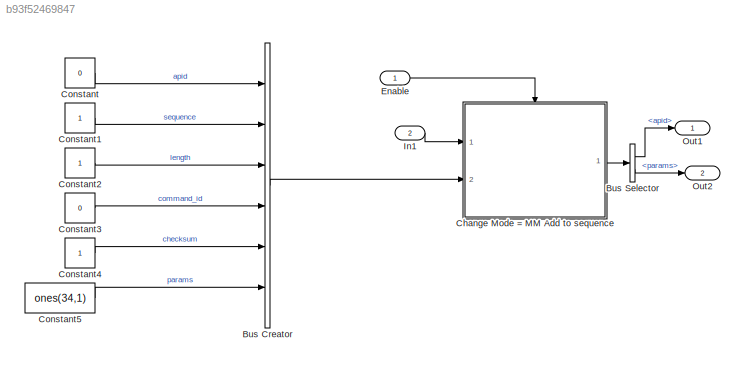
MODEL slx_b93f52469847
KIND model
CONFIG AbsTol = auto
CONFIG EnableMultiTasking = on
CONFIG FixedStep = 0.200000
CONFIG MaxStep = auto
CONFIG MinStep = auto
CONFIG PreLoadFcn = cellInfo = {\n    { ...\n         'cmp_cmd_msg' , ...\n         '', ...\n         sprintf(''), {  ...\n               {  'apid', 1, 'uint16', -1, 'real', 'Sample' }; ... \n               {  'sequence', 1, 'uint16', -1, 'real', 'Sample' }; ... \n               {  'length', 1, 'uint16', -1, 'real', 'Sample' }; ... \n               {  'command_id', 1, 'uint8', -1, 'real', 'Sample' }; ... \n               {  '...<+179ch>
CONFIG RelTol = 1e-3
CONFIG SampleTimeConstraint = Unconstrained
CONFIG Solver = FixedStepDiscrete
CONFIG SolverName = FixedStepDiscrete
CONFIG StartTime = 0.0
CONFIG StopTime = 10.0
BLOCK [BusCreator] Bus Creator
  DisplayOption = bar
  InheritFromInputs = off
  Inputs = 6
  NonVirtualBus = on
  OutDataTypeStr = Bus: cmp_cmd_msg
  Ports = [6, 1]
BLOCK [BusSelector] Bus Selector
  OutputAsBus = off
  OutputSignals = apid,params
  Ports = [1, 2]
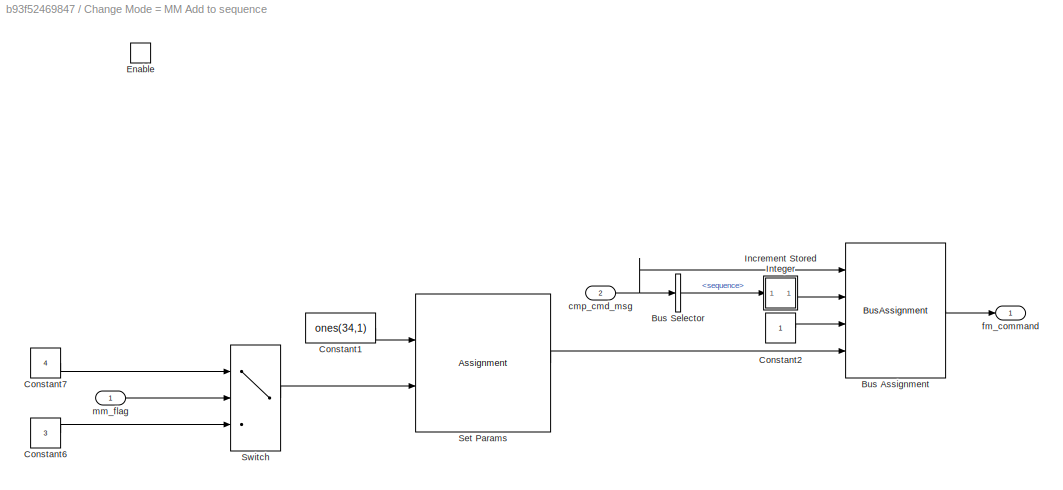
BLOCK [SubSystem] Change Mode = MM Add to sequence
  MinAlgLoopOccurrences = on
  Ports = [2, 1, 1]
  RequestExecContextInheritance = off
  TreatAsAtomicUnit = on
  Variant = off
BLOCK [BusAssignment] Change Mode = MM Add to sequence/Bus Assignment
  AssignedSignals = sequence,command_id,params
  Ports = [4, 1]
BLOCK [BusSelector] Change Mode = MM Add to sequence/Bus Selector
  OutputAsBus = off
  OutputSignals = sequence
  Ports = [1, 1]
BLOCK [Constant] Change Mode = MM Add to sequence/Constant1
  OutDataTypeStr = uint8
  Value = ones(34,1)
BLOCK [Constant] Change Mode = MM Add to sequence/Constant2
  OutDataTypeStr = uint8
BLOCK [Constant] Change Mode = MM Add to sequence/Constant6
  OutDataTypeStr = uint8
  Value = 3
BLOCK [Constant] Change Mode = MM Add to sequence/Constant7
  OutDataTypeStr = uint8
  Value = 4
BLOCK [EnablePort] Change Mode = MM Add to sequence/Enable
  Ports = []
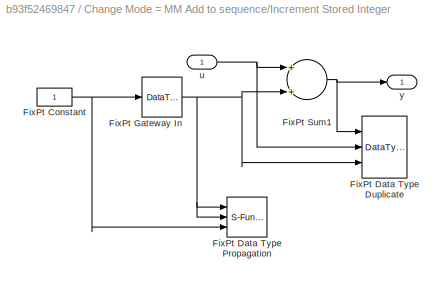
BLOCK [SubSystem] Change Mode = MM Add to sequence/Increment Stored Integer
  AncestorBlock = simulink/Additional Math\n& Discrete/Additional Math:\nIncrement - Decrement/Increment\nStored Integer
  MinAlgLoopOccurrences = on
  Ports = [1, 1]
  RequestExecContextInheritance = off
  TreatAsAtomicUnit = on
  Variant = off
BLOCK [Constant] Change Mode = MM Add to sequence/Increment Stored Integer/FixPt Constant
  DisableCoverage = on
  OutDataTypeStr = Inherit: Inherit via back propagation
BLOCK [DataTypeDuplicate] Change Mode = MM Add to sequence/Increment Stored Integer/FixPt Data Type Duplicate
  DisableCoverage = on
  NumInputPorts = 3
  Ports = [3]
BLOCK [S-Function] Change Mode = MM Add to sequence/Increment Stored Integer/FixPt Data Type Propagation
  AncestorBlock = simulink/Signal\nAttributes/Data Type\nPropagation
  EnableBusSupport = off
  FunctionName = sfix_dtprop
  Parameters = 14,PropDataTypeMode,(getdatatypespecs(PropDataType,PropScaling,DblOver,0, 0, PropDataTypeMode, PropScalingMode)),IfRefDouble,IfRefSingle,IsSigned,NumBitsBase,NumBitsMult,NumBitsAdd,(sort(reshape(round(NumBitsAllowFinal), prod(size(NumBitsAllowFinal)),1))),PropScalingMode,ValuesUsedBestPrec,SlopeBase,SlopeMult,SlopeAdd,BiasBase,BiasMult,BiasAdd,DblOver
  Ports = [3]
  SFcnIsStateOwnerBlock = off
  SFunctionDeploymentMode = off
BLOCK [DataTypeConversion] Change Mode = MM Add to sequence/Increment Stored Integer/FixPt Gateway In
  ConvertRealWorld = Stored Integer (SI)
  DisableCoverage = on
  RndMeth = Floor
  SaturateOnIntegerOverflow = off
BLOCK [Sum] Change Mode = MM Add to sequence/Increment Stored Integer/FixPt Sum1
  LockScale = on
  OutDataTypeStr = Inherit: Inherit via back propagation
  Ports = [2, 1]
  SaturateOnIntegerOverflow = off
BLOCK [Inport] Change Mode = MM Add to sequence/Increment Stored Integer/u
  IconDisplay = Port number
  OutDataTypeStr = uint16
BLOCK [Outport] Change Mode = MM Add to sequence/Increment Stored Integer/y
  IconDisplay = Port number
BLOCK [Assignment] Change Mode = MM Add to sequence/Set Params
  DiagnosticForDimensions = Warning
  IndexOptions = Index vector (dialog)
  Indices = 1
  OutputSizes = 1
  Ports = [2, 1]
BLOCK [Switch] Change Mode = MM Add to sequence/Switch
  Criteria = u2 ~= 0
  InputSameDT = off
  SaturateOnIntegerOverflow = off
BLOCK [Inport] Change Mode = MM Add to sequence/cmp_cmd_msg
  IconDisplay = Port number
  OutDataTypeStr = Bus: cmp_cmd_msg
  Port = 2
BLOCK [Outport] Change Mode = MM Add to sequence/fm_command
  IconDisplay = Port number
BLOCK [Inport] Change Mode = MM Add to sequence/mm_flag
  IconDisplay = Port number
  OutDataTypeStr = uint8
BLOCK [Constant] Constant
  OutDataTypeStr = uint16
  Value = 0
BLOCK [Constant] Constant1
  OutDataTypeStr = uint16
BLOCK [Constant] Constant2
  OutDataTypeStr = uint16
BLOCK [Constant] Constant3
  OutDataTypeStr = uint8
  Value = 0
BLOCK [Constant] Constant4
  OutDataTypeStr = uint8
BLOCK [Constant] Constant5
  OutDataTypeStr = uint8
  Value = ones(34,1)
BLOCK [Inport] Enable
  IconDisplay = Port number
  OutDataTypeStr = boolean
BLOCK [Inport] In1
  IconDisplay = Port number
  OutDataTypeStr = uint8
  Port = 2
BLOCK [Outport] Out1
  IconDisplay = Port number
BLOCK [Outport] Out2
  IconDisplay = Port number
  Port = 2
LINE Bus Creator:1 -> Change Mode = MM Add to sequence:2
LINE Bus Selector:1 -> Out1:1
LINE Bus Selector:2 -> Out2:1
LINE Change Mode = MM Add to sequence/Bus Assignment:1 -> Change Mode = MM Add to sequence/fm_command:1
LINE Change Mode = MM Add to sequence/Bus Selector:1 -> Change Mode = MM Add to sequence/Increment Stored Integer:1
LINE Change Mode = MM Add to sequence/Constant1:1 -> Change Mode = MM Add to sequence/Set Params:1
LINE Change Mode = MM Add to sequence/Constant2:1 -> Change Mode = MM Add to sequence/Bus Assignment:3
LINE Change Mode = MM Add to sequence/Constant6:1 -> Change Mode = MM Add to sequence/Switch:3
LINE Change Mode = MM Add to sequence/Constant7:1 -> Change Mode = MM Add to sequence/Switch:1
LINE Change Mode = MM Add to sequence/Increment Stored Integer:1 -> Change Mode = MM Add to sequence/Bus Assignment:2
LINE Change Mode = MM Add to sequence/Set Params:1 -> Change Mode = MM Add to sequence/Bus Assignment:4
LINE Change Mode = MM Add to sequence/Switch:1 -> Change Mode = MM Add to sequence/Set Params:2
NET Change Mode = MM Add to sequence/cmp_cmd_msg:1 -> Change Mode = MM Add to sequence/Bus Assignment:1, Change Mode = MM Add to sequence/Bus Selector:1
LINE Change Mode = MM Add to sequence/mm_flag:1 -> Change Mode = MM Add to sequence/Switch:2
LINE Change Mode = MM Add to sequence:1 -> Bus Selector:1
LINE Constant1:1 -> Bus Creator:2
LINE Constant2:1 -> Bus Creator:3
LINE Constant3:1 -> Bus Creator:4
LINE Constant4:1 -> Bus Creator:5
LINE Constant5:1 -> Bus Creator:6
LINE Constant:1 -> Bus Creator:1
LINE Enable:1 -> Change Mode = MM Add to sequence:enable
LINE In1:1 -> Change Mode = MM Add to sequence:1
note: NET lines group one-source signal fan-out (src -> all destinations, sorted); 1:1 wires keep LINE
